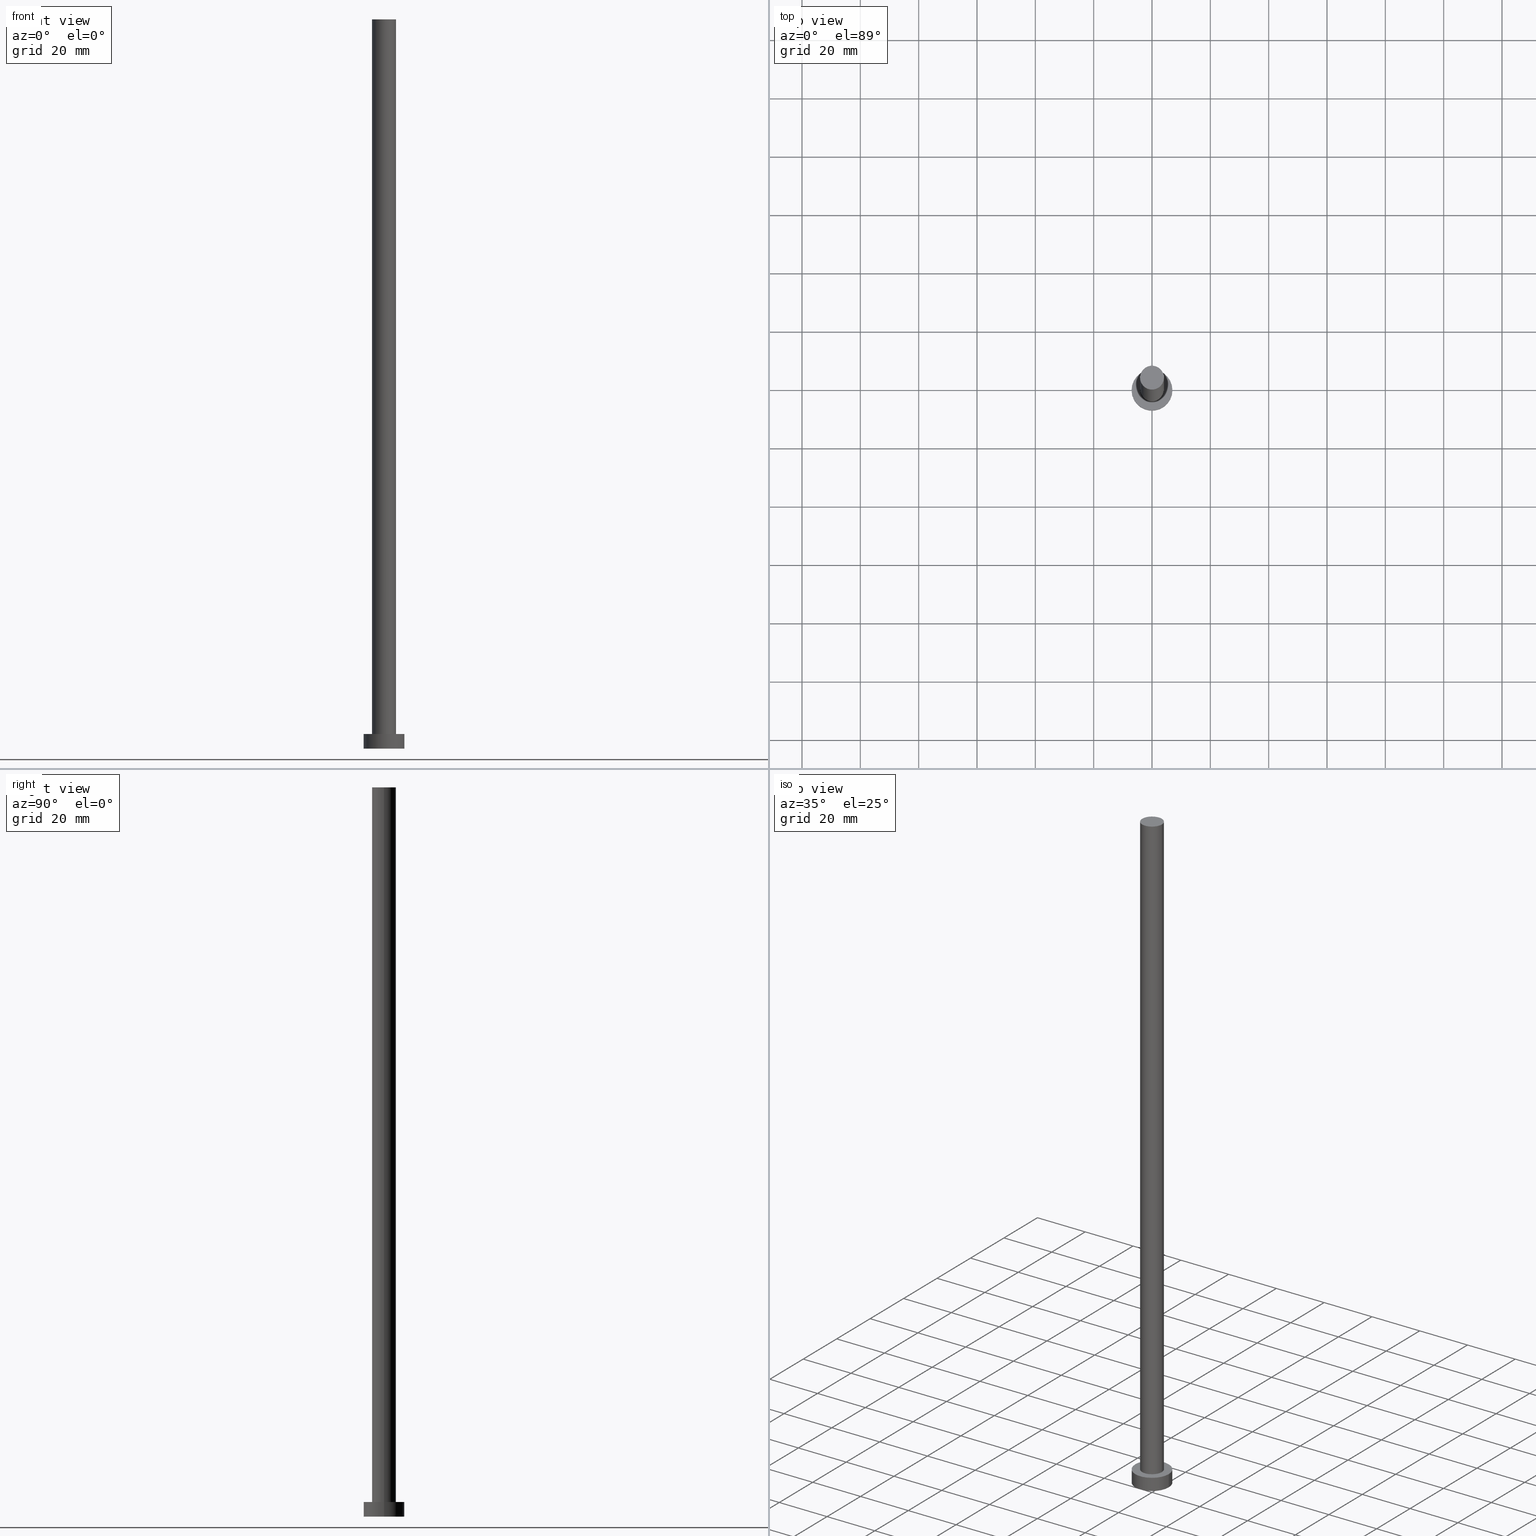
[diagram: canonical four-view strip — front | top / right | iso, engineering-drawing reading convention]
A machine part, canonical four-view strip (front | top / right | iso — engineering-drawing reading convention). The complete STEP part file that produces these views, byte-faithful:
ISO-10303-21;
HEADER;
FILE_DESCRIPTION (( 'STEP AP203' ),
    '1' );
FILE_NAME ('a39b.STEP',
    '2023-02-12T11:46:09',
    ( '' ),
    ( '' ),
    'SwSTEP 2.0',
    'SolidWorks 2019',
    '' );
FILE_SCHEMA (( 'CONFIG_CONTROL_DESIGN' ));
ENDSEC;

DATA;
#1 = DIRECTION ( 'NONE',  ( -1.000000000000000000, 0.000000000000000000, 0.000000000000000000 ) ) ;
#2 = DIRECTION ( 'NONE',  ( 1.000000000000000000, 0.000000000000000000, 0.000000000000000000 ) ) ;
#3 = DIRECTION ( 'NONE',  ( 1.000000000000000000, 0.000000000000000000, 0.000000000000000000 ) ) ;
#4 = CARTESIAN_POINT ( 'NONE',  ( -4.099999999999999645, 0.000000000000000000, 5.000000000000000000 ) ) ;
#5 = ADVANCED_FACE ( 'NONE', ( #166 ), #241, .T. ) ;
#6 = DIRECTION ( 'NONE',  ( -0.000000000000000000, -0.000000000000000000, -1.000000000000000000 ) ) ;
#7 = CARTESIAN_POINT ( 'NONE',  ( 0.000000000000000000, 0.000000000000000000, 5.000000000000000000 ) ) ;
#8 = CC_DESIGN_DATE_AND_TIME_ASSIGNMENT ( #137, #140, ( #71 ) ) ;
#9 = CYLINDRICAL_SURFACE ( 'NONE', #206, 4.099999999999999645 ) ;
#10 = PERSON_AND_ORGANIZATION_ROLE ( 'classification_officer' ) ;
#11 = DIRECTION ( 'NONE',  ( 0.000000000000000000, 0.000000000000000000, 1.000000000000000000 ) ) ;
#12 = APPROVAL_STATUS ( 'not_yet_approved' ) ;
#13 = EDGE_CURVE ( 'NONE', #163, #145, #121, .T. ) ;
#14 = PERSON_AND_ORGANIZATION ( #93, #227 ) ;
#15 = AXIS2_PLACEMENT_3D ( 'NONE', #210, #48, #153 ) ;
#16 = CIRCLE ( 'NONE', #128, 4.099999999999999645 ) ;
#17 = ORIENTED_EDGE ( 'NONE', *, *, #24, .T. ) ;
#18 = VERTEX_POINT ( 'NONE', #239 ) ;
#19 = SHAPE_DEFINITION_REPRESENTATION ( #82, #46 ) ;
#20 = ORIENTED_EDGE ( 'NONE', *, *, #44, .T. ) ;
#21 = EDGE_LOOP ( 'NONE', ( #167, #126 ) ) ;
#22 = ORIENTED_EDGE ( 'NONE', *, *, #44, .F. ) ;
#23 = AXIS2_PLACEMENT_3D ( 'NONE', #87, #6, #94 ) ;
#24 = EDGE_CURVE ( 'NONE', #102, #144, #200, .T. ) ;
#25 = CARTESIAN_POINT ( 'NONE',  ( -4.099999999999999645, 0.000000000000000000, 250.0000000000000000 ) ) ;
#26 = CARTESIAN_POINT ( 'NONE',  ( 4.099999999999999645, 5.021051876504147385E-16, 250.0000000000000000 ) ) ;
#27 = DIRECTION ( 'NONE',  ( -0.000000000000000000, -0.000000000000000000, -1.000000000000000000 ) ) ;
#28 = EDGE_CURVE ( 'NONE', #18, #198, #109, .T. ) ;
#29 = VECTOR ( 'NONE', #247, 1000.000000000000000 ) ;
#30 = UNCERTAINTY_MEASURE_WITH_UNIT (LENGTH_MEASURE( 1.000000000000000082E-05 ), #97, 'distance_accuracy_value', 'NONE');
#31 = CC_DESIGN_APPROVAL ( #35, ( #155 ) ) ;
#32 = CARTESIAN_POINT ( 'NONE',  ( -7.000000000000000000, 0.000000000000000000, 5.000000000000000000 ) ) ;
#33 = DESIGN_CONTEXT ( 'detailed design', #196, 'design' ) ;
#34 = CALENDAR_DATE ( 2023, 12, 2 ) ;
#35 = APPROVAL ( #136, 'NEUR�EN�' ) ;
#36 = DATE_AND_TIME ( #57, #67 ) ;
#37 = DATE_AND_TIME ( #215, #115 ) ;
#38 = ADVANCED_FACE ( 'NONE', ( #86 ), #168, .T. ) ;
#39 = PERSON_AND_ORGANIZATION ( #93, #227 ) ;
#40 = VECTOR ( 'NONE', #27, 1000.000000000000000 ) ;
#41 = EDGE_LOOP ( 'NONE', ( #220, #107 ) ) ;
#42 = ORIENTED_EDGE ( 'NONE', *, *, #96, .T. ) ;
#43 = DIRECTION ( 'NONE',  ( 1.000000000000000000, 0.000000000000000000, 0.000000000000000000 ) ) ;
#44 = EDGE_CURVE ( 'NONE', #144, #102, #147, .T. ) ;
#45 = CLOSED_SHELL ( 'NONE', ( #5, #228, #81, #62, #232, #195, #38 ) ) ;
#46 = ADVANCED_BREP_SHAPE_REPRESENTATION ( 'a39b', ( #135, #197 ), #83 ) ;
#47 = ORIENTED_EDGE ( 'NONE', *, *, #24, .F. ) ;
#48 = DIRECTION ( 'NONE',  ( 0.000000000000000000, 0.000000000000000000, 1.000000000000000000 ) ) ;
#49 = AXIS2_PLACEMENT_3D ( 'NONE', #66, #184, #1 ) ;
#50 = FACE_OUTER_BOUND ( 'NONE', #80, .T. ) ;
#51 = CARTESIAN_POINT ( 'NONE',  ( 4.099999999999999645, 5.021051876504147385E-16, 5.000000000000000000 ) ) ;
#52 = CARTESIAN_POINT ( 'NONE',  ( 0.000000000000000000, 0.000000000000000000, 0.000000000000000000 ) ) ;
#53 = CARTESIAN_POINT ( 'NONE',  ( 7.000000000000000000, 8.572527594031473190E-16, 5.000000000000000000 ) ) ;
#54 = COORDINATED_UNIVERSAL_TIME_OFFSET ( 1, 0, .AHEAD. ) ;
#55 = CC_DESIGN_DATE_AND_TIME_ASSIGNMENT ( #36, #59, ( #106 ) ) ;
#56 = DIRECTION ( 'NONE',  ( 1.000000000000000000, 0.000000000000000000, 0.000000000000000000 ) ) ;
#57 = CALENDAR_DATE ( 2023, 12, 2 ) ;
#58 = PERSON_AND_ORGANIZATION ( #93, #227 ) ;
#59 = DATE_TIME_ROLE ( 'creation_date' ) ;
#60 = DIRECTION ( 'NONE',  ( 0.000000000000000000, 0.000000000000000000, 1.000000000000000000 ) ) ;
#61 = EDGE_LOOP ( 'NONE', ( #47, #164, #108, #124 ) ) ;
#62 = ADVANCED_FACE ( 'NONE', ( #68, #134 ), #158, .T. ) ;
#63 = VERTEX_POINT ( 'NONE', #51 ) ;
#64 = APPROVAL_DATE_TIME ( #37, #175 ) ;
#65 = CARTESIAN_POINT ( 'NONE',  ( 0.000000000000000000, 0.000000000000000000, 5.000000000000000000 ) ) ;
#66 = CARTESIAN_POINT ( 'NONE',  ( 0.000000000000000000, 0.000000000000000000, 250.0000000000000000 ) ) ;
#67 = LOCAL_TIME ( 12, 46, 9.000000000000000000, #233 ) ;
#68 = FACE_BOUND ( 'NONE', #21, .T. ) ;
#69 = CARTESIAN_POINT ( 'NONE',  ( 4.099999999999999645, 5.021051876504147385E-16, 250.0000000000000000 ) ) ;
#70 = CYLINDRICAL_SURFACE ( 'NONE', #23, 7.000000000000000000 ) ;
#71 = SECURITY_CLASSIFICATION ( '', '', #119 ) ;
#72 = CARTESIAN_POINT ( 'NONE',  ( 0.000000000000000000, 0.000000000000000000, 5.000000000000000000 ) ) ;
#73 = CARTESIAN_POINT ( 'NONE',  ( 0.000000000000000000, 0.000000000000000000, 5.000000000000000000 ) ) ;
#74 = APPROVAL_ROLE ( '' ) ;
#75 = EDGE_CURVE ( 'NONE', #102, #18, #188, .T. ) ;
#76 = APPROVAL_ROLE ( '' ) ;
#77 = AXIS2_PLACEMENT_3D ( 'NONE', #125, #203, #2 ) ;
#78 = EDGE_CURVE ( 'NONE', #218, #63, #16, .T. ) ;
#79 = COORDINATED_UNIVERSAL_TIME_OFFSET ( 1, 0, .AHEAD. ) ;
#80 = EDGE_LOOP ( 'NONE', ( #222, #180 ) ) ;
#81 = ADVANCED_FACE ( 'NONE', ( #116 ), #70, .T. ) ;
#82 = PRODUCT_DEFINITION_SHAPE ( 'NONE', 'NONE',  #106 ) ;
#83 =( GEOMETRIC_REPRESENTATION_CONTEXT ( 3 ) GLOBAL_UNCERTAINTY_ASSIGNED_CONTEXT ( ( #30 ) ) GLOBAL_UNIT_ASSIGNED_CONTEXT ( ( #97, #98, #159 ) ) REPRESENTATION_CONTEXT ( 'NONE', 'WORKASPACE' ) );
#84 = ORIENTED_EDGE ( 'NONE', *, *, #13, .F. ) ;
#85 = EDGE_LOOP ( 'NONE', ( #201, #84, #104, #240 ) ) ;
#86 = FACE_OUTER_BOUND ( 'NONE', #41, .T. ) ;
#87 = CARTESIAN_POINT ( 'NONE',  ( 0.000000000000000000, 0.000000000000000000, 5.000000000000000000 ) ) ;
#88 = APPROVAL_PERSON_ORGANIZATION ( #14, #175, #74 ) ;
#89 = DIRECTION ( 'NONE',  ( 0.000000000000000000, 0.000000000000000000, 1.000000000000000000 ) ) ;
#90 = DIRECTION ( 'NONE',  ( 1.000000000000000000, 0.000000000000000000, -0.000000000000000000 ) ) ;
#91 = EDGE_CURVE ( 'NONE', #145, #163, #143, .T. ) ;
#92 = DIRECTION ( 'NONE',  ( -0.000000000000000000, -0.000000000000000000, -1.000000000000000000 ) ) ;
#93 = PERSON ( 'NEUR�EN�', 'NEUR�EN�', 'NEUR�EN�', ('NEUR�EN�'), ('NEUR�EN�'), ('NEUR�EN�') ) ;
#94 = DIRECTION ( 'NONE',  ( -1.000000000000000000, 0.000000000000000000, 0.000000000000000000 ) ) ;
#95 = CALENDAR_DATE ( 2023, 12, 2 ) ;
#96 = EDGE_CURVE ( 'NONE', #145, #63, #190, .T. ) ;
#97 =( LENGTH_UNIT ( ) NAMED_UNIT ( * ) SI_UNIT ( .MILLI., .METRE. ) );
#98 =( NAMED_UNIT ( * ) PLANE_ANGLE_UNIT ( ) SI_UNIT ( $, .RADIAN. ) );
#99 = PERSON_AND_ORGANIZATION ( #93, #227 ) ;
#100 = AXIS2_PLACEMENT_3D ( 'NONE', #244, #169, #230 ) ;
#101 = APPROVAL_PERSON_ORGANIZATION ( #141, #35, #212 ) ;
#102 = VERTEX_POINT ( 'NONE', #173 ) ;
#103 = AXIS2_PLACEMENT_3D ( 'NONE', #146, #221, #43 ) ;
#104 = ORIENTED_EDGE ( 'NONE', *, *, #185, .T. ) ;
#105 = AXIS2_PLACEMENT_3D ( 'NONE', #111, #154, #3 ) ;
#106 = PRODUCT_DEFINITION ( 'NEZN�M�', '', #155, #33 ) ;
#107 = ORIENTED_EDGE ( 'NONE', *, *, #91, .T. ) ;
#108 = ORIENTED_EDGE ( 'NONE', *, *, #28, .T. ) ;
#109 = CIRCLE ( 'NONE', #77, 7.000000000000000000 ) ;
#110 = CARTESIAN_POINT ( 'NONE',  ( -4.099999999999999645, 0.000000000000000000, 250.0000000000000000 ) ) ;
#111 = CARTESIAN_POINT ( 'NONE',  ( 0.000000000000000000, 0.000000000000000000, 0.000000000000000000 ) ) ;
#112 = CC_DESIGN_PERSON_AND_ORGANIZATION_ASSIGNMENT ( #251, #214, ( #155 ) ) ;
#113 = DIRECTION ( 'NONE',  ( -0.000000000000000000, -0.000000000000000000, -1.000000000000000000 ) ) ;
#114 = DIRECTION ( 'NONE',  ( 0.000000000000000000, 0.000000000000000000, 1.000000000000000000 ) ) ;
#115 = LOCAL_TIME ( 12, 46, 9.000000000000000000, #79 ) ;
#116 = FACE_OUTER_BOUND ( 'NONE', #199, .T. ) ;
#117 = DATE_AND_TIME ( #34, #211 ) ;
#118 = APPROVAL_DATE_TIME ( #117, #35 ) ;
#119 = SECURITY_CLASSIFICATION_LEVEL ( 'unclassified' ) ;
#120 = APPLICATION_PROTOCOL_DEFINITION ( 'international standard', 'config_control_design', 1994, #196 ) ;
#121 = CIRCLE ( 'NONE', #103, 4.099999999999999645 ) ;
#122 = VECTOR ( 'NONE', #245, 1000.000000000000000 ) ;
#123 = EDGE_LOOP ( 'NONE', ( #254, #42, #243, #183 ) ) ;
#124 = ORIENTED_EDGE ( 'NONE', *, *, #157, .F. ) ;
#125 = CARTESIAN_POINT ( 'NONE',  ( 0.000000000000000000, 0.000000000000000000, 0.000000000000000000 ) ) ;
#126 = ORIENTED_EDGE ( 'NONE', *, *, #252, .F. ) ;
#127 = FACE_OUTER_BOUND ( 'NONE', #85, .T. ) ;
#128 = AXIS2_PLACEMENT_3D ( 'NONE', #187, #129, #207 ) ;
#129 = DIRECTION ( 'NONE',  ( 0.000000000000000000, 0.000000000000000000, 1.000000000000000000 ) ) ;
#130 = CIRCLE ( 'NONE', #105, 7.000000000000000000 ) ;
#131 = LOCAL_TIME ( 12, 46, 9.000000000000000000, #194 ) ;
#132 = DIRECTION ( 'NONE',  ( -0.000000000000000000, -0.000000000000000000, -1.000000000000000000 ) ) ;
#133 = DIRECTION ( 'NONE',  ( 1.000000000000000000, 0.000000000000000000, 0.000000000000000000 ) ) ;
#134 = FACE_OUTER_BOUND ( 'NONE', #181, .T. ) ;
#135 = MANIFOLD_SOLID_BREP ( 'P�idat vysunut�m3', #45 ) ;
#136 = APPROVAL_STATUS ( 'not_yet_approved' ) ;
#137 = DATE_AND_TIME ( #95, #131 ) ;
#138 = PRODUCT_RELATED_PRODUCT_CATEGORY ( 'detail', '', ( #238 ) ) ;
#139 = CC_DESIGN_SECURITY_CLASSIFICATION ( #71, ( #155 ) ) ;
#140 = DATE_TIME_ROLE ( 'classification_date' ) ;
#141 = PERSON_AND_ORGANIZATION ( #93, #227 ) ;
#142 = CC_DESIGN_PERSON_AND_ORGANIZATION_ASSIGNMENT ( #99, #237, ( #106 ) ) ;
#143 = CIRCLE ( 'NONE', #15, 4.099999999999999645 ) ;
#144 = VERTEX_POINT ( 'NONE', #32 ) ;
#145 = VERTEX_POINT ( 'NONE', #69 ) ;
#146 = CARTESIAN_POINT ( 'NONE',  ( 0.000000000000000000, 0.000000000000000000, 250.0000000000000000 ) ) ;
#147 = CIRCLE ( 'NONE', #217, 7.000000000000000000 ) ;
#148 = DIRECTION ( 'NONE',  ( 1.000000000000000000, 0.000000000000000000, 0.000000000000000000 ) ) ;
#149 = CC_DESIGN_APPROVAL ( #175, ( #71 ) ) ;
#150 = ORIENTED_EDGE ( 'NONE', *, *, #152, .T. ) ;
#151 = LINE ( 'NONE', #229, #160 ) ;
#152 = EDGE_CURVE ( 'NONE', #198, #18, #130, .T. ) ;
#153 = DIRECTION ( 'NONE',  ( 1.000000000000000000, 0.000000000000000000, 0.000000000000000000 ) ) ;
#154 = DIRECTION ( 'NONE',  ( 0.000000000000000000, 0.000000000000000000, 1.000000000000000000 ) ) ;
#155 = PRODUCT_DEFINITION_FORMATION_WITH_SPECIFIED_SOURCE ( 'LIBOVOLN�', '', #238, .NOT_KNOWN. ) ;
#156 = DIRECTION ( 'NONE',  ( 1.000000000000000000, 0.000000000000000000, -0.000000000000000000 ) ) ;
#157 = EDGE_CURVE ( 'NONE', #144, #198, #151, .T. ) ;
#158 = PLANE ( 'NONE',  #225 ) ;
#159 =( NAMED_UNIT ( * ) SI_UNIT ( $, .STERADIAN. ) SOLID_ANGLE_UNIT ( ) );
#160 = VECTOR ( 'NONE', #132, 1000.000000000000000 ) ;
#161 = MECHANICAL_CONTEXT ( 'NONE', #213, 'mechanical' ) ;
#162 = APPLICATION_PROTOCOL_DEFINITION ( 'international standard', 'config_control_design', 1994, #213 ) ;
#163 = VERTEX_POINT ( 'NONE', #25 ) ;
#164 = ORIENTED_EDGE ( 'NONE', *, *, #75, .T. ) ;
#165 = CIRCLE ( 'NONE', #248, 4.099999999999999645 ) ;
#166 = FACE_OUTER_BOUND ( 'NONE', #123, .T. ) ;
#167 = ORIENTED_EDGE ( 'NONE', *, *, #78, .F. ) ;
#168 = PLANE ( 'NONE',  #100 ) ;
#169 = DIRECTION ( 'NONE',  ( 0.000000000000000000, 0.000000000000000000, 1.000000000000000000 ) ) ;
#170 = CYLINDRICAL_SURFACE ( 'NONE', #236, 7.000000000000000000 ) ;
#171 = DIRECTION ( 'NONE',  ( 0.000000000000000000, 0.000000000000000000, 1.000000000000000000 ) ) ;
#172 = PLANE ( 'NONE',  #255 ) ;
#173 = CARTESIAN_POINT ( 'NONE',  ( 7.000000000000000000, 8.572527594031473190E-16, 5.000000000000000000 ) ) ;
#174 = APPROVAL_STATUS ( 'not_yet_approved' ) ;
#175 = APPROVAL ( #174, 'NEUR�EN�' ) ;
#176 = DATE_AND_TIME ( #193, #209 ) ;
#177 = PERSON_AND_ORGANIZATION ( #93, #227 ) ;
#178 = CC_DESIGN_PERSON_AND_ORGANIZATION_ASSIGNMENT ( #39, #192, ( #155 ) ) ;
#179 = CARTESIAN_POINT ( 'NONE',  ( 0.000000000000000000, 0.000000000000000000, 0.000000000000000000 ) ) ;
#180 = ORIENTED_EDGE ( 'NONE', *, *, #28, .F. ) ;
#181 = EDGE_LOOP ( 'NONE', ( #20, #17 ) ) ;
#182 = APPROVAL ( #12, 'NEUR�EN�' ) ;
#183 = ORIENTED_EDGE ( 'NONE', *, *, #185, .F. ) ;
#184 = DIRECTION ( 'NONE',  ( -0.000000000000000000, -0.000000000000000000, -1.000000000000000000 ) ) ;
#185 = EDGE_CURVE ( 'NONE', #163, #218, #208, .T. ) ;
#186 = ORIENTED_EDGE ( 'NONE', *, *, #157, .T. ) ;
#187 = CARTESIAN_POINT ( 'NONE',  ( 0.000000000000000000, 0.000000000000000000, 5.000000000000000000 ) ) ;
#188 = LINE ( 'NONE', #53, #29 ) ;
#189 = AXIS2_PLACEMENT_3D ( 'NONE', #65, #60, #148 ) ;
#190 = LINE ( 'NONE', #26, #122 ) ;
#191 = DIRECTION ( 'NONE',  ( 1.000000000000000000, 0.000000000000000000, 0.000000000000000000 ) ) ;
#192 = PERSON_AND_ORGANIZATION_ROLE ( 'design_supplier' ) ;
#193 = CALENDAR_DATE ( 2023, 12, 2 ) ;
#194 = COORDINATED_UNIVERSAL_TIME_OFFSET ( 1, 0, .AHEAD. ) ;
#195 = ADVANCED_FACE ( 'NONE', ( #127 ), #9, .T. ) ;
#196 = APPLICATION_CONTEXT ( 'configuration controlled 3d designs of mechanical parts and assemblies' ) ;
#197 = AXIS2_PLACEMENT_3D ( 'NONE', #179, #11, #56 ) ;
#198 = VERTEX_POINT ( 'NONE', #205 ) ;
#199 = EDGE_LOOP ( 'NONE', ( #204, #22, #186, #150 ) ) ;
#200 = CIRCLE ( 'NONE', #189, 7.000000000000000000 ) ;
#201 = ORIENTED_EDGE ( 'NONE', *, *, #96, .F. ) ;
#202 = CC_DESIGN_APPROVAL ( #182, ( #106 ) ) ;
#203 = DIRECTION ( 'NONE',  ( 0.000000000000000000, 0.000000000000000000, 1.000000000000000000 ) ) ;
#204 = ORIENTED_EDGE ( 'NONE', *, *, #75, .F. ) ;
#205 = CARTESIAN_POINT ( 'NONE',  ( -7.000000000000000000, 0.000000000000000000, 0.000000000000000000 ) ) ;
#206 = AXIS2_PLACEMENT_3D ( 'NONE', #224, #113, #226 ) ;
#207 = DIRECTION ( 'NONE',  ( 1.000000000000000000, 0.000000000000000000, 0.000000000000000000 ) ) ;
#208 = LINE ( 'NONE', #110, #40 ) ;
#209 = LOCAL_TIME ( 12, 46, 9.000000000000000000, #54 ) ;
#210 = CARTESIAN_POINT ( 'NONE',  ( 0.000000000000000000, 0.000000000000000000, 250.0000000000000000 ) ) ;
#211 = LOCAL_TIME ( 12, 46, 9.000000000000000000, #216 ) ;
#212 = APPROVAL_ROLE ( '' ) ;
#213 = APPLICATION_CONTEXT ( 'configuration controlled 3d designs of mechanical parts and assemblies' ) ;
#214 = PERSON_AND_ORGANIZATION_ROLE ( 'creator' ) ;
#215 = CALENDAR_DATE ( 2023, 12, 2 ) ;
#216 = COORDINATED_UNIVERSAL_TIME_OFFSET ( 1, 0, .AHEAD. ) ;
#217 = AXIS2_PLACEMENT_3D ( 'NONE', #73, #171, #191 ) ;
#218 = VERTEX_POINT ( 'NONE', #4 ) ;
#219 = CC_DESIGN_PERSON_AND_ORGANIZATION_ASSIGNMENT ( #253, #10, ( #71 ) ) ;
#220 = ORIENTED_EDGE ( 'NONE', *, *, #13, .T. ) ;
#221 = DIRECTION ( 'NONE',  ( 0.000000000000000000, 0.000000000000000000, 1.000000000000000000 ) ) ;
#222 = ORIENTED_EDGE ( 'NONE', *, *, #152, .F. ) ;
#223 = APPROVAL_PERSON_ORGANIZATION ( #58, #182, #76 ) ;
#224 = CARTESIAN_POINT ( 'NONE',  ( 0.000000000000000000, 0.000000000000000000, 250.0000000000000000 ) ) ;
#225 = AXIS2_PLACEMENT_3D ( 'NONE', #231, #89, #90 ) ;
#226 = DIRECTION ( 'NONE',  ( -1.000000000000000000, 0.000000000000000000, 0.000000000000000000 ) ) ;
#227 = ORGANIZATION ( 'NEUR�EN�', 'NEUR�EN�', '' ) ;
#228 = ADVANCED_FACE ( 'NONE', ( #250 ), #170, .T. ) ;
#229 = CARTESIAN_POINT ( 'NONE',  ( -7.000000000000000000, 0.000000000000000000, 5.000000000000000000 ) ) ;
#230 = DIRECTION ( 'NONE',  ( 1.000000000000000000, 0.000000000000000000, -0.000000000000000000 ) ) ;
#231 = CARTESIAN_POINT ( 'NONE',  ( 0.000000000000000000, 0.000000000000000000, 5.000000000000000000 ) ) ;
#232 = ADVANCED_FACE ( 'NONE', ( #50 ), #172, .F. ) ;
#233 = COORDINATED_UNIVERSAL_TIME_OFFSET ( 1, 0, .AHEAD. ) ;
#234 = APPROVAL_DATE_TIME ( #176, #182 ) ;
#235 = PERSON_AND_ORGANIZATION_ROLE ( 'design_owner' ) ;
#236 = AXIS2_PLACEMENT_3D ( 'NONE', #7, #92, #246 ) ;
#237 = PERSON_AND_ORGANIZATION_ROLE ( 'creator' ) ;
#238 = PRODUCT ( 'a39b', 'a39b', '', ( #161 ) ) ;
#239 = CARTESIAN_POINT ( 'NONE',  ( 7.000000000000000000, 8.572527594031473190E-16, 0.000000000000000000 ) ) ;
#240 = ORIENTED_EDGE ( 'NONE', *, *, #78, .T. ) ;
#241 = CYLINDRICAL_SURFACE ( 'NONE', #49, 4.099999999999999645 ) ;
#242 = CC_DESIGN_PERSON_AND_ORGANIZATION_ASSIGNMENT ( #177, #235, ( #238 ) ) ;
#243 = ORIENTED_EDGE ( 'NONE', *, *, #252, .T. ) ;
#244 = CARTESIAN_POINT ( 'NONE',  ( 0.000000000000000000, 0.000000000000000000, 250.0000000000000000 ) ) ;
#245 = DIRECTION ( 'NONE',  ( -0.000000000000000000, -0.000000000000000000, -1.000000000000000000 ) ) ;
#246 = DIRECTION ( 'NONE',  ( -1.000000000000000000, 0.000000000000000000, 0.000000000000000000 ) ) ;
#247 = DIRECTION ( 'NONE',  ( -0.000000000000000000, -0.000000000000000000, -1.000000000000000000 ) ) ;
#248 = AXIS2_PLACEMENT_3D ( 'NONE', #72, #114, #133 ) ;
#249 = DIRECTION ( 'NONE',  ( 0.000000000000000000, 0.000000000000000000, 1.000000000000000000 ) ) ;
#250 = FACE_OUTER_BOUND ( 'NONE', #61, .T. ) ;
#251 = PERSON_AND_ORGANIZATION ( #93, #227 ) ;
#252 = EDGE_CURVE ( 'NONE', #63, #218, #165, .T. ) ;
#253 = PERSON_AND_ORGANIZATION ( #93, #227 ) ;
#254 = ORIENTED_EDGE ( 'NONE', *, *, #91, .F. ) ;
#255 = AXIS2_PLACEMENT_3D ( 'NONE', #52, #249, #156 ) ;
ENDSEC;
END-ISO-10303-21;
